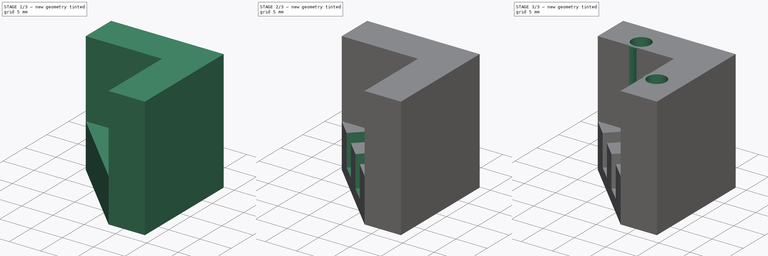
[diagram: build sequence overview — one tinted view per stage of 3, left to right]
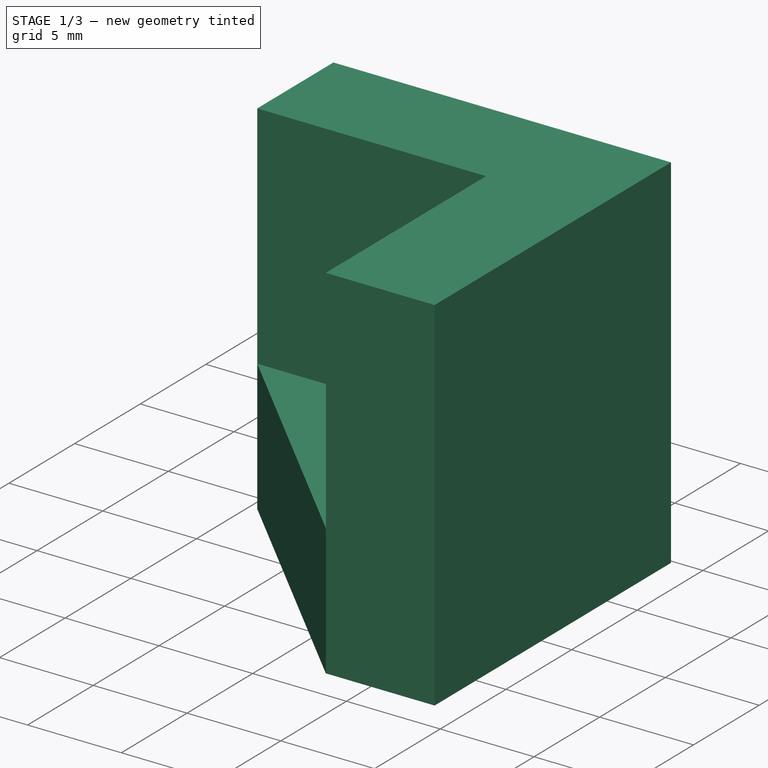
[diagram: stage 1 of 3 — iso view after this stage's code; geometry added in this stage tinted green]
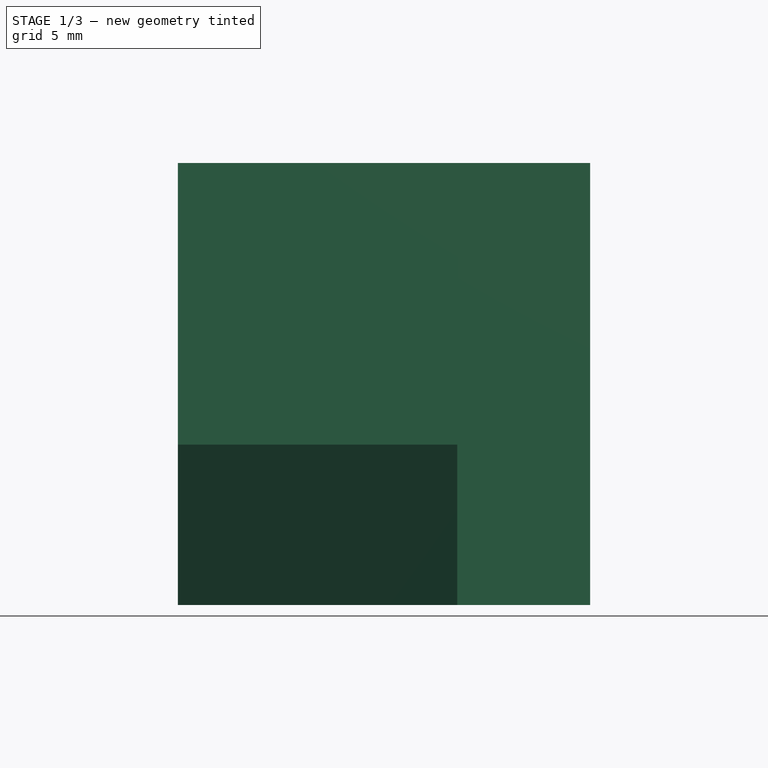
[diagram: stage 1 of 3 — front view after this stage's code; geometry added in this stage tinted green]
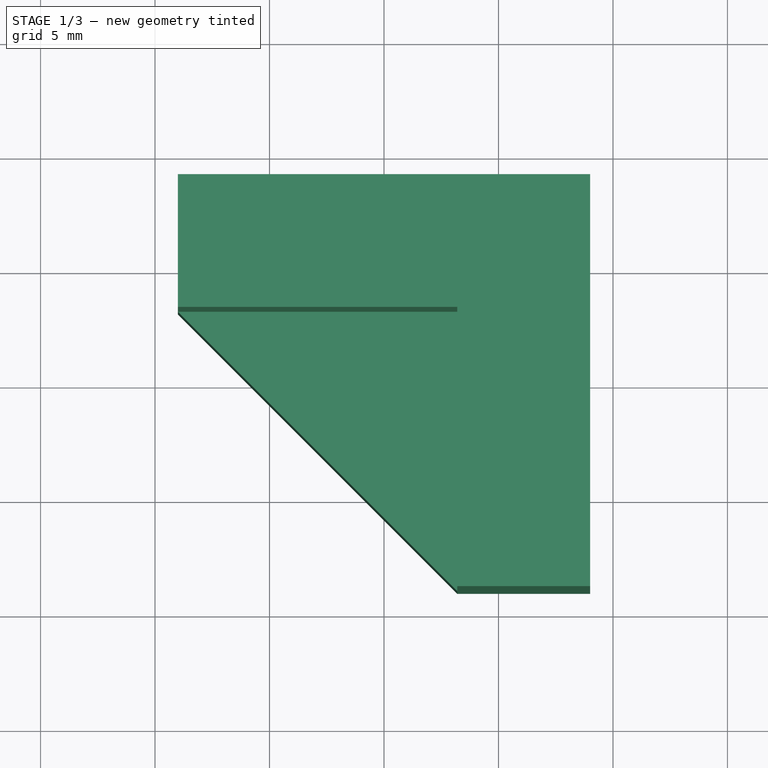
[diagram: stage 1 of 3 — top view after this stage's code; geometry added in this stage tinted green]
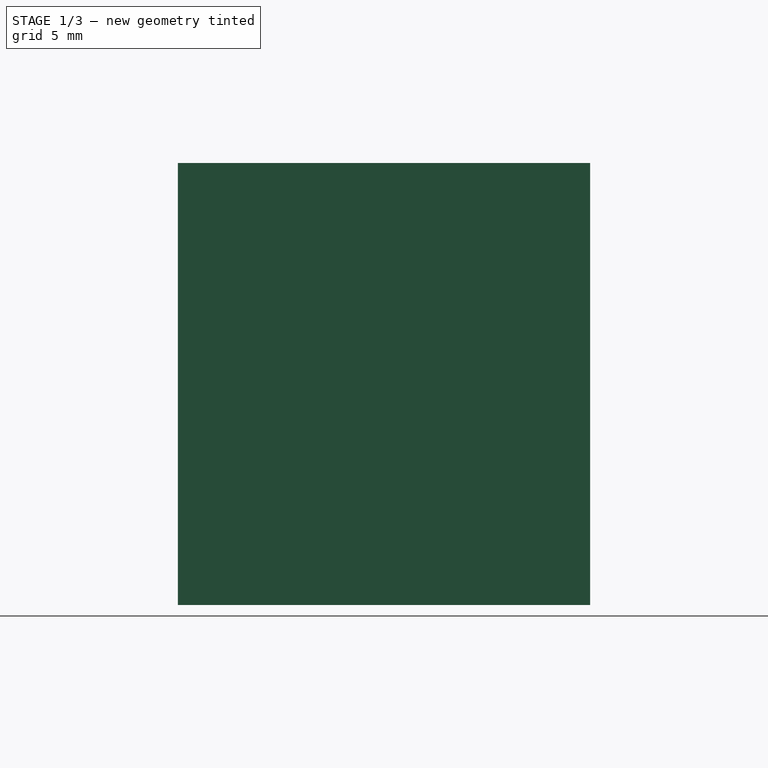
[diagram: stage 1 of 3 — right view after this stage's code; geometry added in this stage tinted green]
FCSTD DOCUMENT  (FreeCAD 0.21R33668 +26 (Git))
Label: magnet_press_jig_side
License: All rights reserved
LicenseURL: https://en.wikipedia.org/wiki/All_rights_reserved
objects: Sketcher::SketchObject×5, PartDesign::Pocket×3, PartDesign::Pad×2, PartDesign::Plane×2, PartDesign::Body×1
note: 18 computed .brp shape members not serialized (recipe doc carries the construction recipe); baked Part::Feature solids carry a one-line shape summary decoded from their .brp

FEATURE [Sketcher::SketchObject] Sketch
  FullyConstrained = true
  MapMode = 5
  Support = -> [XY_Plane]
  sketch-geometry (9):
    g0: LineSegment StartX=-9 StartY=3.2 StartZ=0 EndX=-9 EndY=9 EndZ=0
    g1: LineSegment StartX=-9 StartY=9 StartZ=0 EndX=9 EndY=9 EndZ=0
    g2: LineSegment StartX=9 StartY=9 StartZ=0 EndX=9 EndY=-9 EndZ=0
    g3: LineSegment StartX=9 StartY=-9 StartZ=0 EndX=3.2 EndY=-9 EndZ=0
    g4: GeomPoint X=0 Y=0 Z=0
    g5: LineSegment StartX=-9 StartY=3.2 StartZ=0 EndX=3.2 EndY=-9 EndZ=0
    g6: LineSegment StartX=-9 StartY=9 StartZ=0 EndX=0 EndY=0 EndZ=0
    g7: LineSegment StartX=0 StartY=0 StartZ=0 EndX=9 EndY=9 EndZ=0
    g8: LineSegment StartX=0 StartY=0 StartZ=0 EndX=9 EndY=-9 EndZ=0
  constraints (22):
    c: Coincident(g0,g1)
    c: Coincident(g1,g2)
    c: Coincident(g2,g3)
    c: Horizontal(g1)
    c: Horizontal(g3)
    c: Vertical(g0)
    c: Vertical(g2)
    c: Coincident(g4,g-1)
    c: DistanceX(g1,g1) = 18
    c: Coincident(g0,g5)
    c: Coincident(g3,g5)
    c: Equal(g3,g0)
    c: DistanceX(g3,g3) = 5.8
    c: Equal(g2,g1)
    c: Coincident(g6,g0)
    c: Coincident(g6,g4)
    c: Coincident(g7,g6)
    c: Coincident(g7,g1)
    c: Equal(g7,g6)
    c: Coincident(g8,g6)
    c: Coincident(g8,g2)
    c: Equal(g8,g7)
FEATURE [PartDesign::Pad] Pad
  Direction = (0,0,1)
  Length = 19.3
  Length2 = 10
  Profile = -> Sketch
  ReferenceAxis = -> Sketch [N_Axis]
  Type = 0
FEATURE [PartDesign::Plane] DatumPlane
  AttachmentOffset = pos=(0,0,7) rot=(0,0,1;0rad)
  Length = 60
  MapMode = 5
  Placement = pos=(0,0,7) rot=(0,0,1;0rad)
  ResizeMode = 0
  Support = -> [XY_Plane]
  Width = 60
FEATURE [Sketcher::SketchObject] Sketch001
  FullyConstrained = true
  MapMode = 5
  Placement = pos=(0,0,7) rot=(0,0,1;0rad)
  Support = -> [DatumPlane]
  sketch-geometry (3):
    g0: LineSegment StartX=-9 StartY=3.2 StartZ=0 EndX=3.2 EndY=3.2 EndZ=0
    g1: LineSegment StartX=3.2 StartY=3.2 StartZ=0 EndX=3.2 EndY=-9 EndZ=0
    g2: LineSegment StartX=3.2 StartY=-9 StartZ=0 EndX=-9 EndY=3.2 EndZ=0
  constraints (9):
    c: Horizontal(g0)
    c: Coincident(g1,g0)
    c: Vertical(g1)
    c: Coincident(g2,g1)
    c: Coincident(g2,g0)
    c: DistanceX(g0,g0) = 12.2
    c: Equal(g0,g1)
    c: DistanceY(g-1,g0) = 3.2
    c: DistanceX(g-1,g0) = 3.2
FEATURE [PartDesign::Pocket] Pocket
  BaseFeature = -> Pad
  Direction = (0,0,-1)
  Length = 5
  Length2 = 5
  Profile = -> Sketch001
  ReferenceAxis = -> Sketch001 [N_Axis]
  Reversed = true
  Type = 1
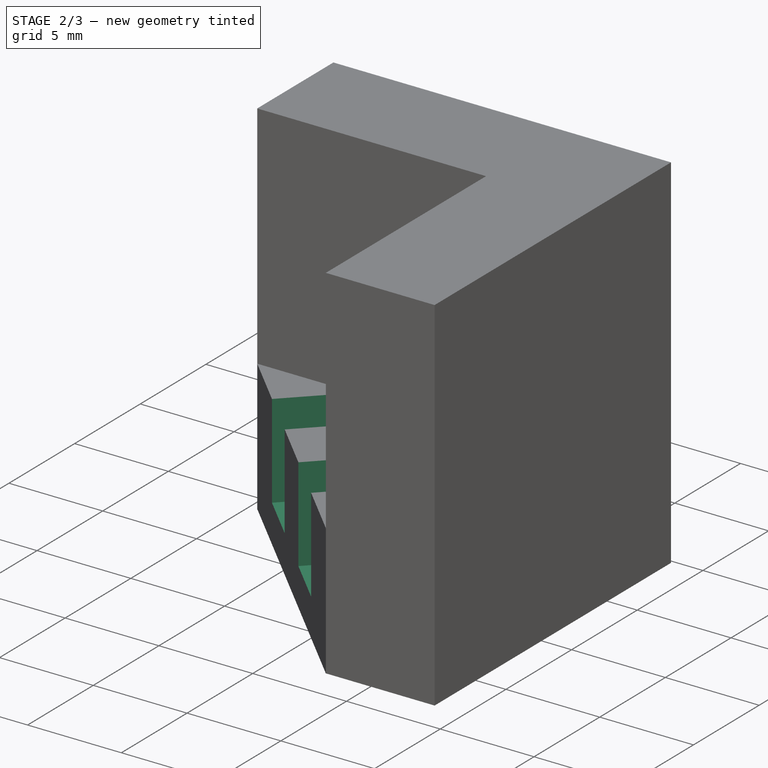
[diagram: stage 2 of 3 — iso view after this stage's code; geometry added in this stage tinted green]
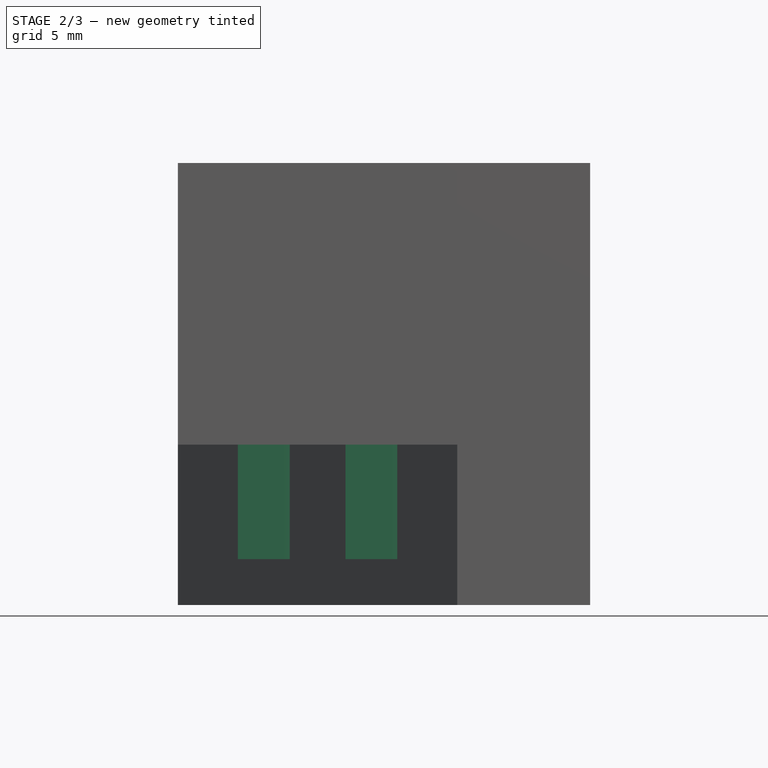
[diagram: stage 2 of 3 — front view after this stage's code; geometry added in this stage tinted green]
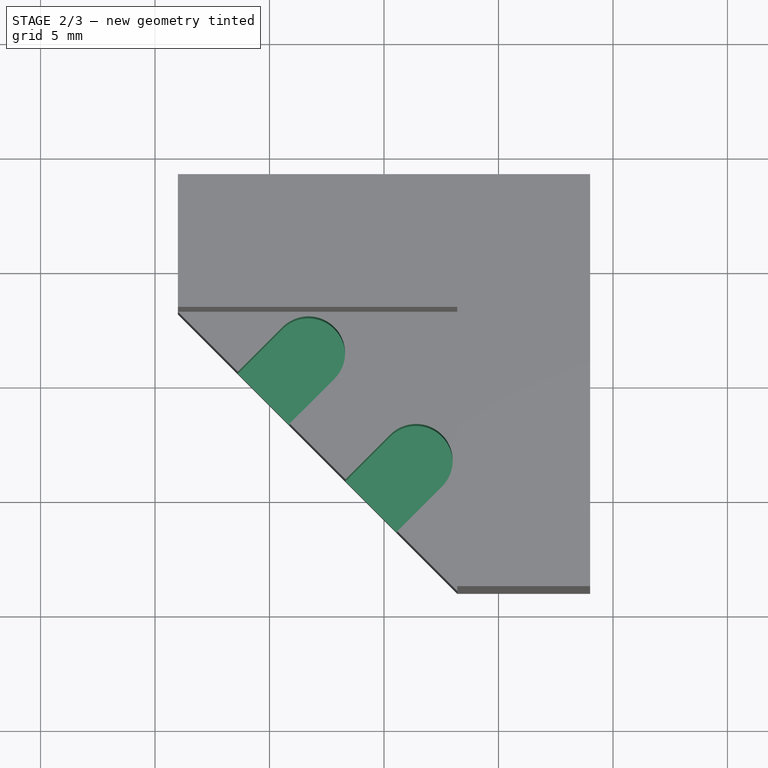
[diagram: stage 2 of 3 — top view after this stage's code; geometry added in this stage tinted green]
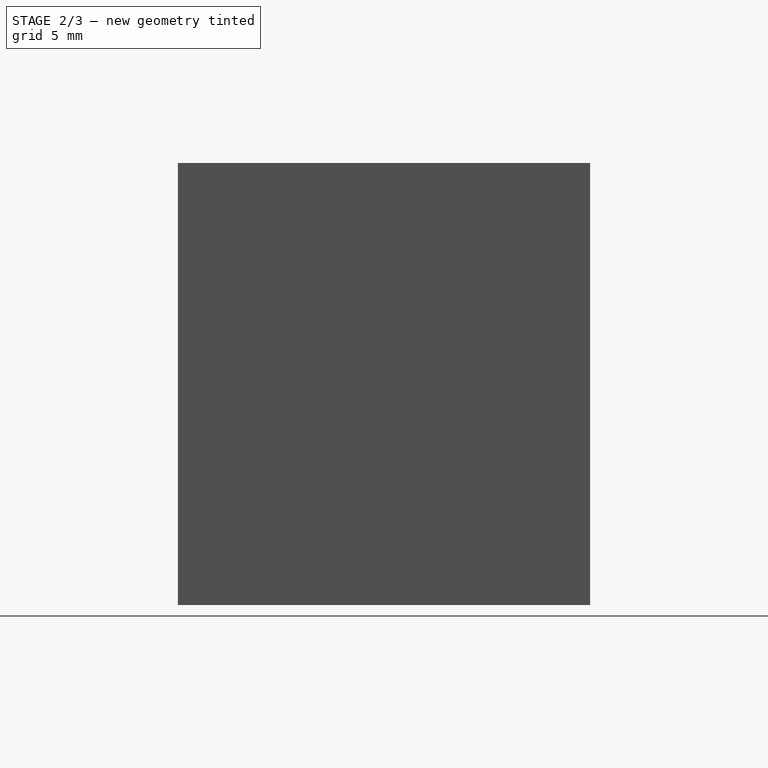
[diagram: stage 2 of 3 — right view after this stage's code; geometry added in this stage tinted green]
FEATURE [Sketcher::SketchObject] Sketch002
  FullyConstrained = true
  MapMode = 5
  Placement = pos=(0,0,7) rot=(0,0,1;0rad)
  Support = -> [DatumPlane]
  sketch-geometry (11):
    g0: LineSegment StartX=-3.3 StartY=1.4 StartZ=0 EndX=1.4 EndY=-3.3 EndZ=0
    g1: LineSegment StartX=-0.95 StartY=-0.95 StartZ=0 EndX=-1e-16 EndY=0 EndZ=0
    g2: GeomPoint X=3 Y=3 Z=0
    g3: ArcOfCircle CenterX=-3.3 CenterY=1.4 CenterZ=0 NormalX=0 NormalY=0 NormalZ=1 AngleXU=0 Radius=1.6 StartAngle=5.49779 EndAngle=8.63938
    g4: ArcOfCircle CenterX=1.4 CenterY=-3.3 CenterZ=0 NormalX=0 NormalY=0 NormalZ=1 AngleXU=0 Radius=1.6 StartAngle=5.49779 EndAngle=8.63938
    g5: LineSegment StartX=-4.43137 StartY=2.53137 StartZ=0 EndX=-6.69411 EndY=0.268629 EndZ=0
    g6: LineSegment StartX=-2.16863 StartY=0.268629 StartZ=0 EndX=-4.43137 EndY=-1.99411 EndZ=0
    g7: LineSegment StartX=0.268629 StartY=-2.16863 StartZ=0 EndX=-1.99411 EndY=-4.43137 EndZ=0
    g8: LineSegment StartX=2.53137 StartY=-4.43137 StartZ=0 EndX=0.268629 EndY=-6.69411 EndZ=0
    g9: LineSegment StartX=0.268629 StartY=-6.69411 StartZ=0 EndX=-1.99411 EndY=-4.43137 EndZ=0
    g10: LineSegment StartX=-4.43137 StartY=-1.99411 StartZ=0 EndX=-6.69411 EndY=0.268629 EndZ=0
  constraints (30):
    c: Angle(g-2,g0) = 0.785398
    c: Coincident(g1,g-1)
    c: Perpendicular(g0,g1)
    c: DistanceX(g1,g2) = 3
    c: DistanceY(g1,g2) = 3
    c: Coincident(g3,g0)
    c: Coincident(g4,g0)
    c: Symmetric(g3,g4,g1)
    c: DistanceX(g3,g2) = 6.3
    c: DistanceY(g3,g2) = 1.6
    c: Diameter(g4) = 3.2
    c: Equal(g4,g3)
    c: Coincident(g9,g8)
    c: Coincident(g9,g7)
    c: Coincident(g10,g6)
    c: Coincident(g10,g5)
    c: Tangent(g6,g3) = 1.5708
    c: Tangent(g7,g4) = -1.5708
    c: Perpendicular(g9,g7)
    c: Perpendicular(g8,g9)
    c: PointOnObject(g7,g0)
    c: PointOnObject(g6,g0)
    c: Equal(g9,g7)
    c: Equal(g7,g6)
    c: Perpendicular(g5,g10)
    c: Perpendicular(g6,g10)
    c: Tangent(g3,g5) = -1.5708
    c: PointOnObject(g3,g0)
    c: PointOnObject(g4,g0)
    c: Tangent(g4,g8) = 1.5708
FEATURE [PartDesign::Pocket] Pocket002
  BaseFeature = -> Pocket
  Direction = (0,0,-1)
  Length = 5
  Length2 = 5
  Profile = -> Sketch002
  ReferenceAxis = -> Sketch002 [N_Axis]
  Type = 0
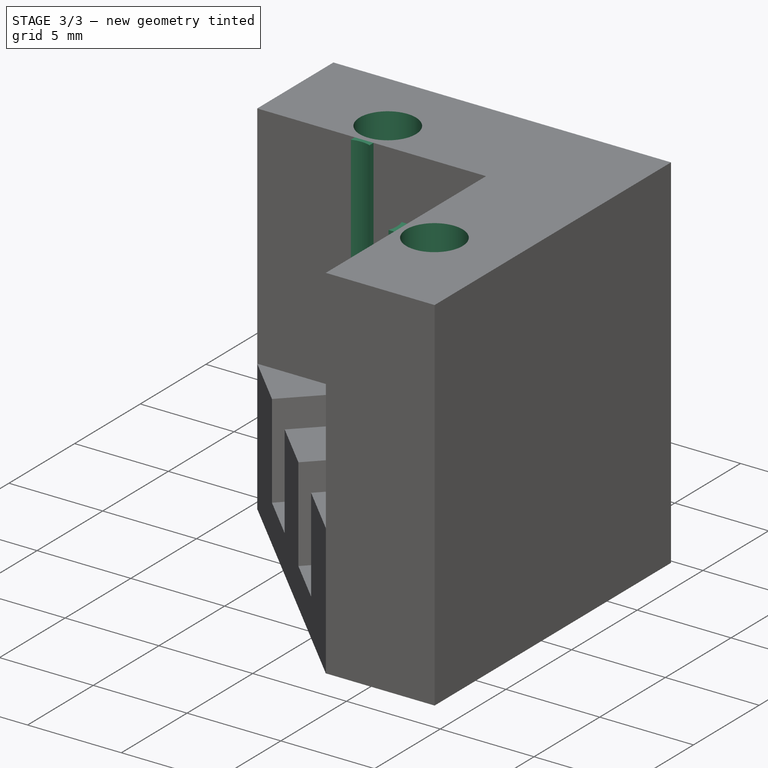
[diagram: stage 3 of 3 — iso view after this stage's code; geometry added in this stage tinted green]
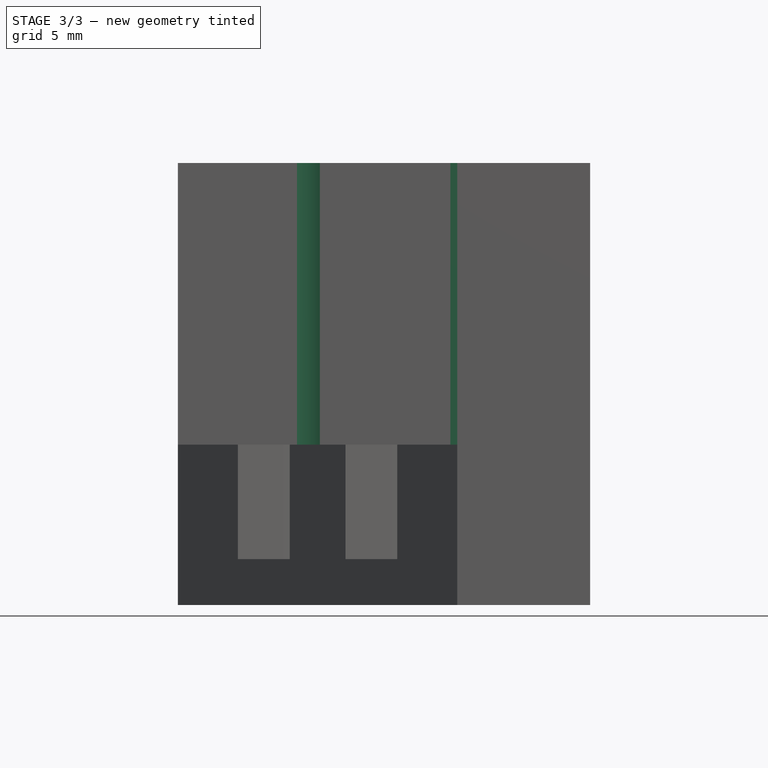
[diagram: stage 3 of 3 — front view after this stage's code; geometry added in this stage tinted green]
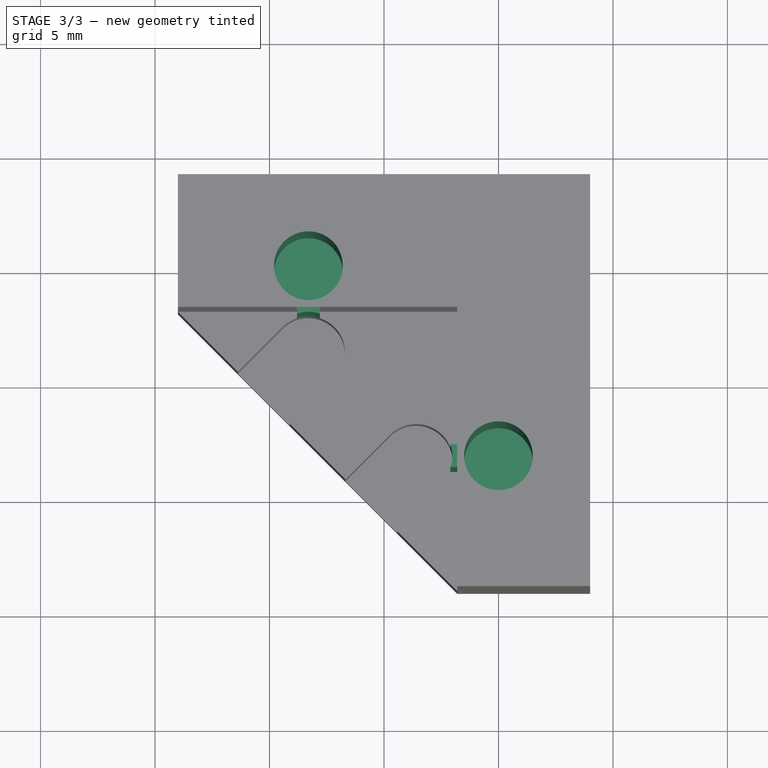
[diagram: stage 3 of 3 — top view after this stage's code; geometry added in this stage tinted green]
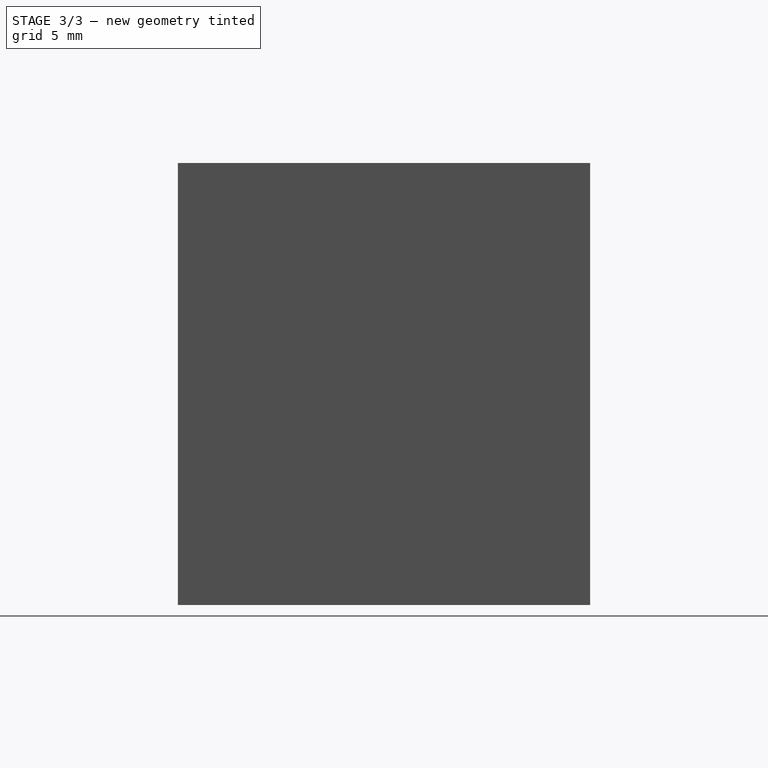
[diagram: stage 3 of 3 — right view after this stage's code; geometry added in this stage tinted green]
FEATURE [PartDesign::Plane] DatumPlane001
  AttachmentOffset = pos=(0,0,19.3) rot=(0,0,1;0rad)
  Length = 60
  MapMode = 5
  Placement = pos=(0,0,19.3) rot=(0,0,1;0rad)
  ResizeMode = 0
  Support = -> [XY_Plane]
  Width = 60
FEATURE [Sketcher::SketchObject] Sketch003
  FullyConstrained = true
  MapMode = 5
  Placement = pos=(0,0,19.3) rot=(0,0,1;0rad)
  Support = -> [DatumPlane001]
  sketch-geometry (5):
    g0: Circle CenterX=-3.3 CenterY=5 CenterZ=0 NormalX=0 NormalY=0 NormalZ=1 AngleXU=0 Radius=1.5
    g1: Circle CenterX=5 CenterY=-3.3 CenterZ=0 NormalX=0 NormalY=0 NormalZ=1 AngleXU=0 Radius=1.5
    g2: LineSegment StartX=-3.3 StartY=5 StartZ=0 EndX=5 EndY=-3.3 EndZ=0
    g3: LineSegment StartX=0 StartY=0 StartZ=0 EndX=0.85 EndY=0.85 EndZ=0
    g4: GeomPoint X=3 Y=3 Z=0
  constraints (12):
    c: Coincident(g2,g0)
    c: Coincident(g2,g1)
    c: Equal(g0,g1)
    c: Diameter(g0) = 3
    c: DistanceY(g-1,g0) = 5
    c: Angle(g-2,g2) = 0.785398
    c: Coincident(g3,g-1)
    c: Perpendicular(g2,g3)
    c: Symmetric(g1,g0,g3)
    c: DistanceY(g-1,g4) = 3
    c: DistanceX(g3,g4) = 3
    c: DistanceX(g0,g4) = 6.3
FEATURE [PartDesign::Pocket] Pocket003
  BaseFeature = -> Pocket002
  Direction = (0,0,-1)
  Length = 17.3
  Length2 = 5
  Profile = -> Sketch003
  ReferenceAxis = -> Sketch003 [N_Axis]
  Type = 0
FEATURE [Sketcher::SketchObject] Sketch004
  FullyConstrained = true
  MapMode = 5
  Placement = pos=(0,0,19.3) rot=(0,0,1;0rad)
  Support = -> [DatumPlane001]
  sketch-geometry (11):
    g0: LineSegment StartX=-3.8 StartY=3.2 StartZ=0 EndX=-2.8 EndY=3.2 EndZ=0
    g1: LineSegment StartX=-2.8 StartY=3.2 StartZ=0 EndX=-2.8 EndY=2.9 EndZ=0
    g2: LineSegment StartX=-3.8 StartY=2.9 StartZ=0 EndX=-3.8 EndY=3.2 EndZ=0
    g3: LineSegment StartX=3.2 StartY=-2.8 StartZ=0 EndX=2.9 EndY=-2.8 EndZ=0
    g4: LineSegment StartX=2.9 StartY=-3.8 StartZ=0 EndX=3.2 EndY=-3.8 EndZ=0
    g5: LineSegment StartX=3.2 StartY=-3.8 StartZ=0 EndX=3.2 EndY=-2.8 EndZ=0
    g6: ArcOfCircle CenterX=-3.3 CenterY=1.48579 CenterZ=0 NormalX=0 NormalY=0 NormalZ=1 AngleXU=0 Radius=1.5 StartAngle=1.23096 EndAngle=1.91063
    g7: ArcOfCircle CenterX=1.48579 CenterY=-3.3 CenterZ=0 NormalX=0 NormalY=0 NormalZ=1 AngleXU=0 Radius=1.5 StartAngle=5.94335 EndAngle=6.62302
    g8: LineSegment StartX=-3.3 StartY=1.48579 StartZ=0 EndX=1.48579 EndY=-3.3 EndZ=0
    g9: LineSegment StartX=0 StartY=0 StartZ=0 EndX=-0.907107 EndY=-0.907107 EndZ=0
    g10: GeomPoint X=3 Y=3 Z=0
  constraints (32):
    c: Coincident(g0,g1)
    c: Coincident(g2,g0)
    c: Horizontal(g0)
    c: Vertical(g1)
    c: Vertical(g2)
    c: Coincident(g4,g5)
    c: Coincident(g5,g3)
    c: Horizontal(g3)
    c: Horizontal(g4)
    c: Vertical(g5)
    c: Coincident(g6,g2)
    c: Coincident(g6,g1)
    c: Coincident(g7,g3)
    c: Equal(g6,g7)
    c: Coincident(g4,g7)
    c: Coincident(g8,g6)
    c: Coincident(g8,g7)
    c: Coincident(g9,g-1)
    c: Perpendicular(g8,g9)
    c: Symmetric(g6,g7,g9)
    c: Angle(g-2,g8) = 0.785398
    c: Equal(g1,g4)
    c: Equal(g3,g4)
    c: Equal(g2,g1)
    c: Diameter(g6) = 3
    c: DistanceX(g9,g10) = 3
    c: DistanceY(g9,g10) = 3
    c: DistanceX(g6,g10) = 6.3
    c: Equal(g5,g0)
    c: DistanceY(g10,g0) = 0.2
    c: DistanceX(g0,g0) = 1
    c: DistanceY(g2,g2) = 0.3
FEATURE [PartDesign::Pad] Pad001
  BaseFeature = -> Pocket003
  Direction = (0,0,1)
  Length = 10
  Length2 = 10
  Profile = -> Sketch004
  ReferenceAxis = -> Sketch004 [N_Axis]
  Reversed = true
  Type = 2
FEATURE [PartDesign::Body] Body
  Group = -> [Sketch,Pad,DatumPlane,Sketch001,Pocket,Sketch002,Pocket002,DatumPlane001,Sketch003,Pocket003,Sketch004,Pad001]
  Origin = -> Origin
  Tip = -> Pad001
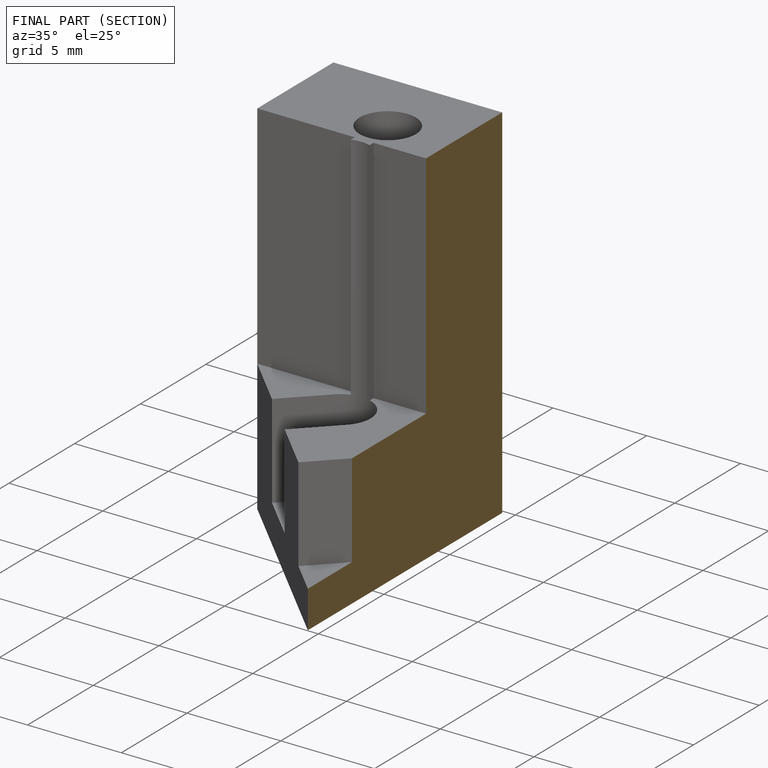
[diagram: finished part — half-section view (interior)]
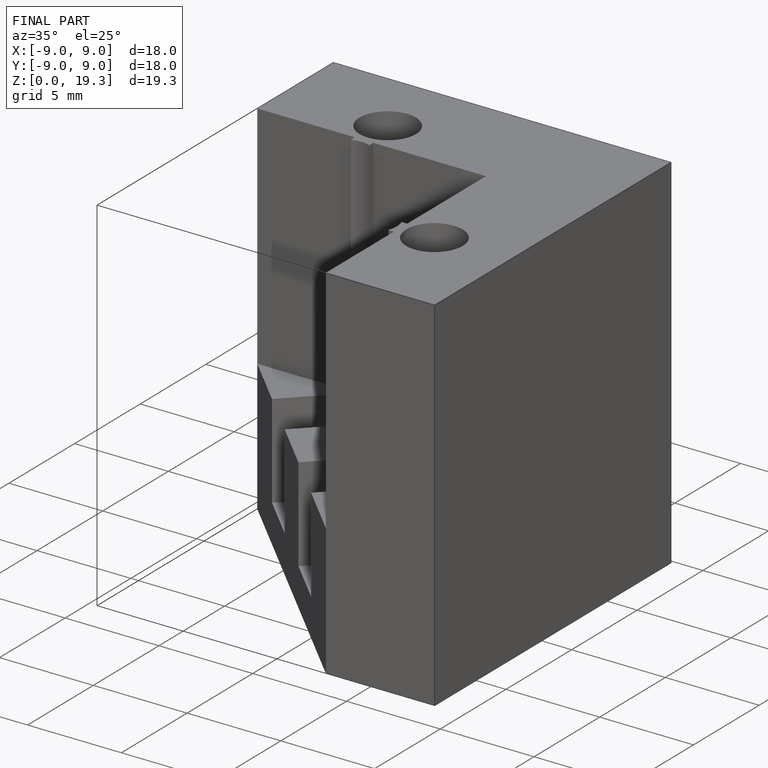
[diagram: finished part — iso view with bounding-box wireframe]
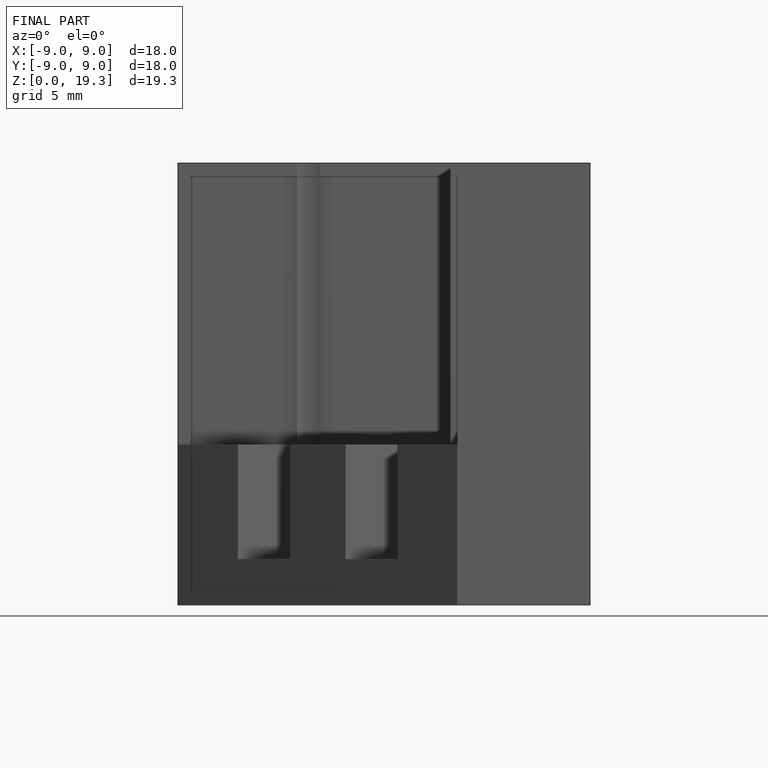
[diagram: finished part — front view with bounding-box wireframe]
